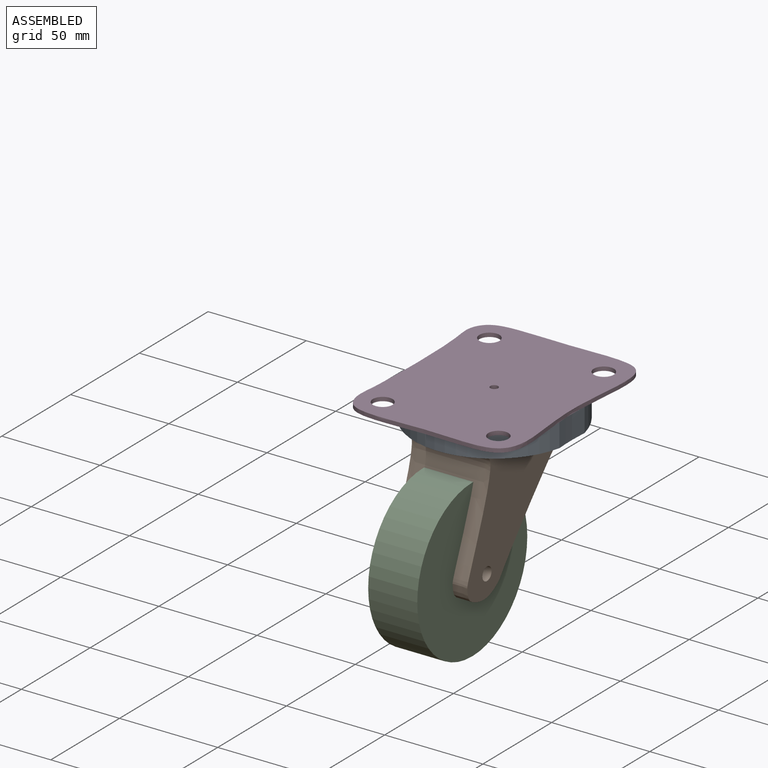
[diagram: assembled view]
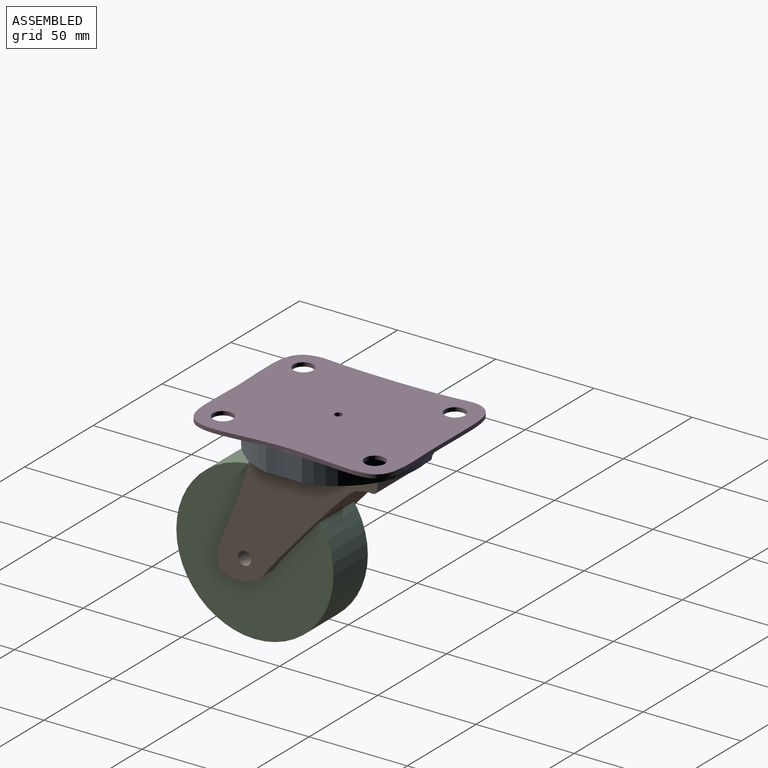
[diagram: assembled view, second angle]
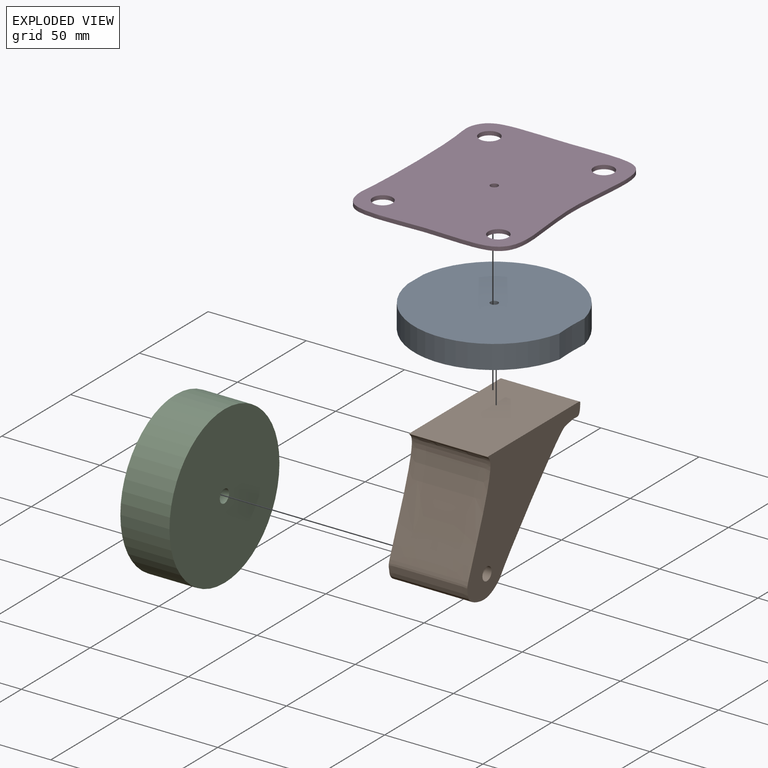
[diagram: exploded view]
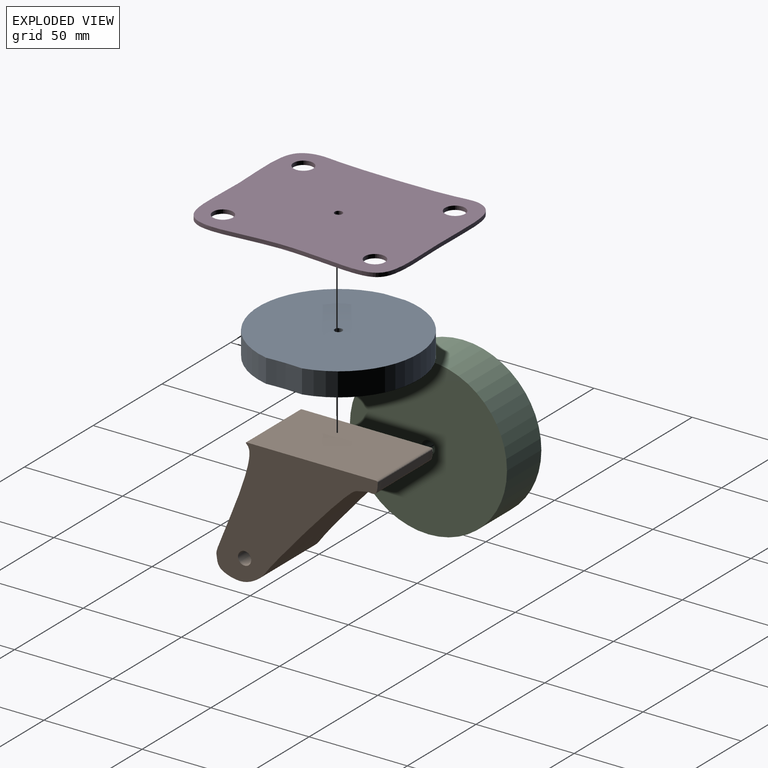
[diagram: exploded view, second angle]
ASSEMBLY  parts=4 mates=3
PART A: 7 faces, bbox 80x81.3x12 mm
  f0: extruded ~18.35x12mm, area 220.4mm2, adj f1,f4,f5,f6
  f1: cylinder r=40.66mm len=79.83mm, axis (0,0,-1), area 1349.5mm2, adj f0,f2,f5,f6
  f2: extruded ~12x11.31mm, area 135.8mm2, adj f1,f4,f5,f6
  f3: cylinder r=1.96mm len=12mm, axis (0,0,-1), area 147.8mm2, adj f5,f6
  f4: cylinder r=40.66mm len=79.93mm, axis (0,0,-1), area 1358.1mm2, adj f0,f2,f5,f6
  f5: plane 81.33x79.96mm, normal (0,0,1), area 5162.5mm2, adj f0,f1,f2,f3,f4
  f6: plane 81.33x79.96mm, normal (0,0,-1), area 5162.5mm2, adj f0,f1,f2,f3,f4
PART B: 5 faces, bbox 40x82.9x67.6 mm
  f0: plane 65.93x40mm, normal (0,0,1), area 2637mm2, adj f1,f3,f4
  f1: extruded ~82.16x64.55mm, area 7025.5mm2, adj f0,f3,f4
  f2: cylinder r=3.35mm len=40mm, axis (-1,0,0), area 841.2mm2, adj f3,f4
  f3: plane 82.92x67.57mm, normal (1,0,0), area 2485.7mm2, adj f0,f1,f2
  f4: plane 82.92x67.57mm, normal (-1,0,0), area 2485.7mm2, adj f0,f1,f2
PART C: 4 faces, bbox 25x80x80 mm
  f0: cylinder r=3.35mm len=25mm, axis (-1,0,0), area 525.8mm2, adj f2,f3
  f1: cylinder r=40mm len=80mm, axis (-1,0,0), area 6283.2mm2, adj f2,f3
  f2: plane 80x80mm, normal (1,0,0), area 4991.4mm2, adj f0,f1
  f3: plane 80x80mm, normal (-1,0,0), area 4991.4mm2, adj f0,f1
PART D: 8 faces, bbox 85.9x106.6x2 mm
  f0: cylinder r=5.13mm len=10.26mm, axis (0,0,-1), area 64.4mm2, adj f6,f7
  f1: cylinder r=5.13mm len=10.26mm, axis (0,0,-1), area 64.4mm2, adj f6,f7
  f2: extruded ~103.61x83.53mm, area 697.4mm2, adj f6,f7
  f3: cylinder r=5.02mm len=10.04mm, axis (0,0,-1), area 63.1mm2, adj f6,f7
  f4: cylinder r=5.1mm len=10.21mm, axis (0,0,-1), area 64.1mm2, adj f6,f7
  f5: cylinder r=1.96mm len=3.92mm, axis (0,0,-1), area 24.6mm2, adj f6,f7
  f6: plane 106.55x85.85mm, normal (0,0,1), area 7952.3mm2, adj f0,f1,f2,f3,f4,f5
  f7: plane 106.55x85.85mm, normal (0,0,-1), area 7952.3mm2, adj f0,f1,f2,f3,f4,f5
PLACE A t=(-23.64,-13.13,30.17)mm
PLACE B t=(-23.64,-13.48,30.03)mm
PLACE C t=(-23.64,-13.48,30.03)mm
PLACE D t=(-23.64,-13.13,30.17)mm fixed
MATE revolute B.f0 <-> A.f1  axis (0,0,1) through (-23.64,13.44,78.17)mm
MATE revolute C.f0 <-> B.f2  axis (1,0,0) through (-11.14,-20.38,24.52)mm
MATE fastened A.f1 <-> D.f5  axis (0,0,1) through (-23.64,13.44,90.17)mm
